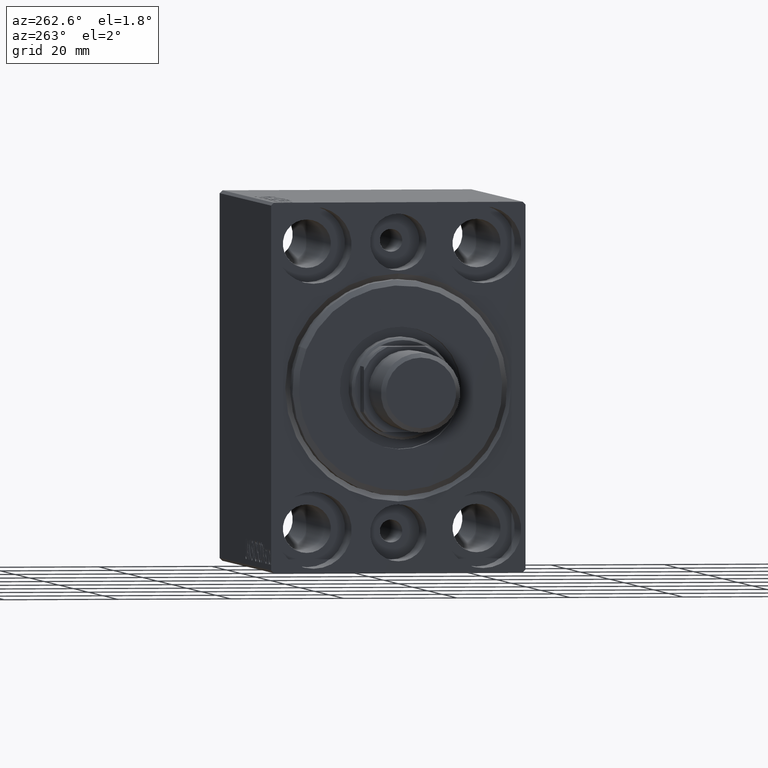
[diagram: clean part render]
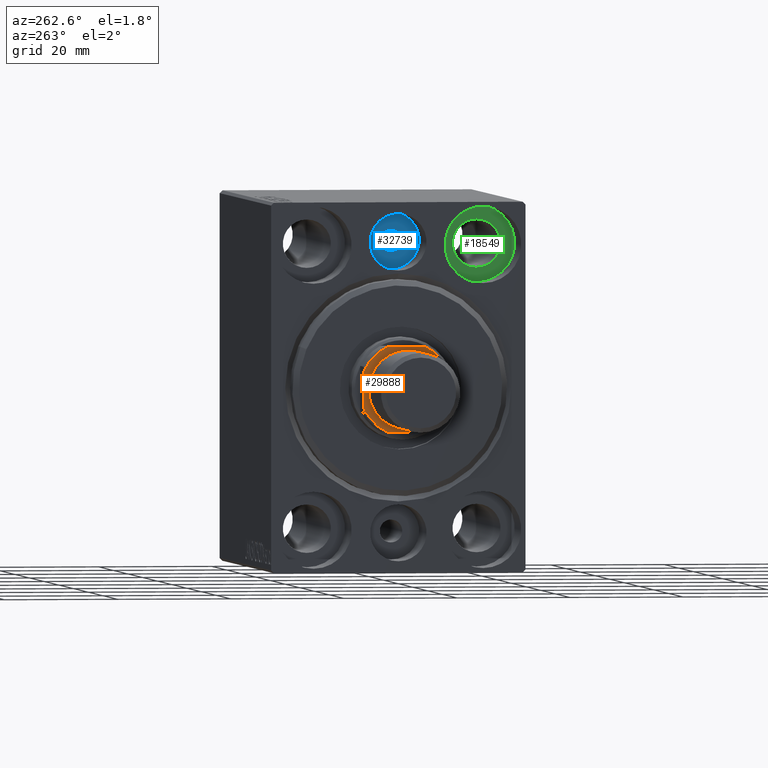
[diagram: same view with three faces highlighted in distinct colors, each labeled with its STEP entity id]
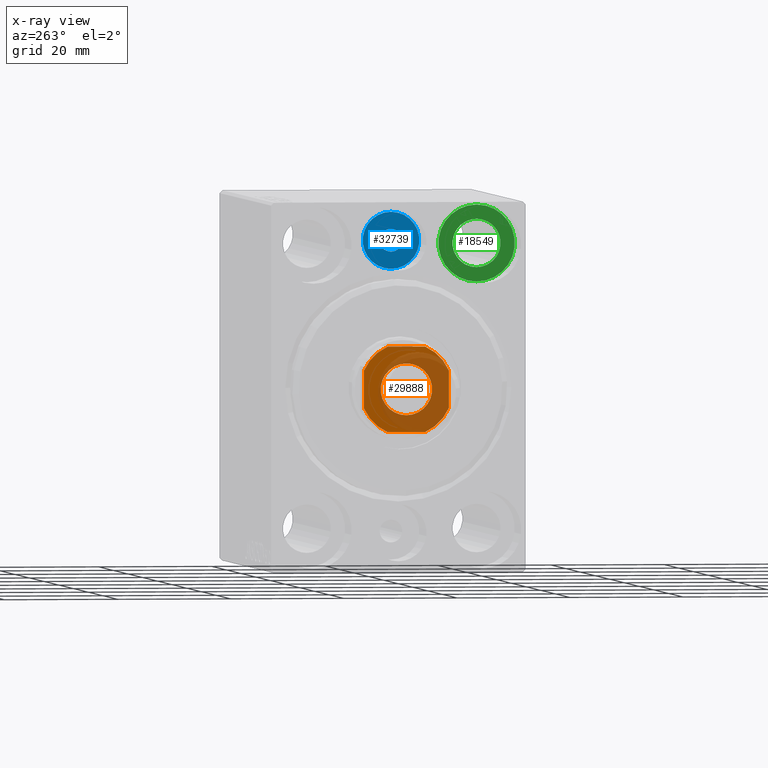
[diagram: x-ray of the same camera — body ghosted, the three highlighted faces saturated]
A machine part, auxiliary view with three faces highlighted in distinct colors.
The next image is the same camera in x-ray (body ghosted, the three faces saturated) — at least one of them is partly hidden behind the body in this view.
Their STEP definitions:

[orange] entity #29888 — the highlighted planar face has unit normal (-1, 0, 0).
#442 = CIRCLE ( 'NONE', #15416, 8.200000000000002842 ) ;
#1366 = CARTESIAN_POINT ( 'NONE',  ( 7.499999999999998224, 3.315116890850192899, 75.00000000000001421 ) ) ;
#1729 = DIRECTION ( 'NONE',  ( 1.000000000000000000, 0.000000000000000000, 0.000000000000000000 ) ) ;
#2503 = LINE ( 'NONE', #26401, #4319 ) ;
#2802 = CARTESIAN_POINT ( 'NONE',  ( 7.499999999999997335, 7.500000000000000888, 75.00000000000001421 ) ) ;
#3000 = EDGE_CURVE ( 'NONE', #27829, #9729, #6425, .T. ) ;
#3057 = FACE_OUTER_BOUND ( 'NONE', #17407, .T. ) ;
#3119 = EDGE_CURVE ( 'NONE', #22297, #27567, #2503, .T. ) ;
#4319 = VECTOR ( 'NONE', #30416, 1000.000000000000000 ) ;
#4987 = DIRECTION ( 'NONE',  ( 0.000000000000000000, -0.000000000000000000, -1.000000000000000000 ) ) ;
#5552 = ORIENTED_EDGE ( 'NONE', *, *, #10823, .T. ) ;
#5656 = DIRECTION ( 'NONE',  ( 1.000000000000000000, 0.000000000000000000, 0.000000000000000000 ) ) ;
#6035 = DIRECTION ( 'NONE',  ( -0.000000000000000000, 0.000000000000000000, 1.000000000000000000 ) ) ;
#6104 = DIRECTION ( 'NONE',  ( -0.000000000000000000, 0.000000000000000000, 1.000000000000000000 ) ) ;
#6425 = CIRCLE ( 'NONE', #17173, 4.549999999999991829 ) ;
#6665 = ORIENTED_EDGE ( 'NONE', *, *, #13968, .T. ) ;
#8273 = EDGE_CURVE ( 'NONE', #33694, #41959, #24808, .T. ) ;
#9729 = VERTEX_POINT ( 'NONE', #13303 ) ;
#9964 = DIRECTION ( 'NONE',  ( 1.000000000000000000, 0.000000000000000000, 0.000000000000000000 ) ) ;
#10823 = EDGE_CURVE ( 'NONE', #9729, #27829, #25779, .T. ) ;
#12752 = AXIS2_PLACEMENT_3D ( 'NONE', #39715, #29879, #26762 ) ;
#13303 = CARTESIAN_POINT ( 'NONE',  ( -4.549999999999991829, 5.572142936120446480E-16, 75.00000000000001421 ) ) ;
#13968 = EDGE_CURVE ( 'NONE', #28750, #33694, #31526, .T. ) ;
#14471 = EDGE_CURVE ( 'NONE', #41277, #19533, #19429, .T. ) ;
#14518 = EDGE_LOOP ( 'NONE', ( #32367, #5552 ) ) ;
#14656 = VERTEX_POINT ( 'NONE', #1366 ) ;
#15183 = EDGE_CURVE ( 'NONE', #41959, #41277, #19147, .T. ) ;
#15416 = AXIS2_PLACEMENT_3D ( 'NONE', #33574, #6104, #40971 ) ;
#15509 = AXIS2_PLACEMENT_3D ( 'NONE', #28770, #28554, #1729 ) ;
#15692 = DIRECTION ( 'NONE',  ( 1.000000000000000000, 0.000000000000000000, 0.000000000000000000 ) ) ;
#16696 = DIRECTION ( 'NONE',  ( -0.000000000000000000, 0.000000000000000000, 1.000000000000000000 ) ) ;
#16789 = DIRECTION ( 'NONE',  ( 1.000000000000000000, 0.000000000000000000, 0.000000000000000000 ) ) ;
#17171 = ORIENTED_EDGE ( 'NONE', *, *, #39672, .T. ) ;
#17173 = AXIS2_PLACEMENT_3D ( 'NONE', #25317, #4987, #15692 ) ;
#17285 = VECTOR ( 'NONE', #34886, 1000.000000000000000 ) ;
#17407 = EDGE_LOOP ( 'NONE', ( #38535, #17171, #26418, #42631, #6665, #35946, #23241, #31021 ) ) ;
#18994 = CARTESIAN_POINT ( 'NONE',  ( 4.549999999999991829, 0.000000000000000000, 75.00000000000001421 ) ) ;
#19147 = LINE ( 'NONE', #23602, #32974 ) ;
#19429 = CIRCLE ( 'NONE', #43693, 8.200000000000011724 ) ;
#19533 = VERTEX_POINT ( 'NONE', #20310 ) ;
#19775 = DIRECTION ( 'NONE',  ( -1.156482317317871478E-16, 1.000000000000000000, -0.000000000000000000 ) ) ;
#19800 = DIRECTION ( 'NONE',  ( 1.000000000000000000, 0.000000000000000000, 0.000000000000000000 ) ) ;
#20126 = CARTESIAN_POINT ( 'NONE',  ( 0.000000000000000000, 0.000000000000000000, 75.00000000000001421 ) ) ;
#20310 = CARTESIAN_POINT ( 'NONE',  ( 7.499999999999998224, -3.315116890850184461, 75.00000000000001421 ) ) ;
#22297 = VERTEX_POINT ( 'NONE', #38203 ) ;
#23165 = VECTOR ( 'NONE', #19775, 1000.000000000000000 ) ;
#23241 = ORIENTED_EDGE ( 'NONE', *, *, #15183, .T. ) ;
#23602 = CARTESIAN_POINT ( 'NONE',  ( -7.499999999999999112, -7.499999999999998224, 75.00000000000001421 ) ) ;
#24049 = CARTESIAN_POINT ( 'NONE',  ( 0.000000000000000000, 0.000000000000000000, 75.00000000000001421 ) ) ;
#24808 = CIRCLE ( 'NONE', #15509, 8.200000000000024158 ) ;
#25014 = EDGE_CURVE ( 'NONE', #19533, #14656, #30929, .T. ) ;
#25317 = CARTESIAN_POINT ( 'NONE',  ( 0.000000000000000000, 0.000000000000000000, 75.00000000000001421 ) ) ;
#25779 = CIRCLE ( 'NONE', #28640, 4.549999999999991829 ) ;
#26401 = CARTESIAN_POINT ( 'NONE',  ( -7.500000000000001776, 7.500000000000001776, 75.00000000000001421 ) ) ;
#26418 = ORIENTED_EDGE ( 'NONE', *, *, #3119, .T. ) ;
#26762 = DIRECTION ( 'NONE',  ( 1.000000000000000000, 0.000000000000000000, 0.000000000000000000 ) ) ;
#26964 = PLANE ( 'NONE',  #38285 ) ;
#27567 = VERTEX_POINT ( 'NONE', #38580 ) ;
#27829 = VERTEX_POINT ( 'NONE', #18994 ) ;
#28554 = DIRECTION ( 'NONE',  ( -0.000000000000000000, 0.000000000000000000, 1.000000000000000000 ) ) ;
#28640 = AXIS2_PLACEMENT_3D ( 'NONE', #36030, #42547, #5656 ) ;
#28750 = VERTEX_POINT ( 'NONE', #37488 ) ;
#28770 = CARTESIAN_POINT ( 'NONE',  ( 0.000000000000000000, 0.000000000000000000, 75.00000000000001421 ) ) ;
#29160 = EDGE_CURVE ( 'NONE', #27567, #28750, #442, .T. ) ;
#29784 = CARTESIAN_POINT ( 'NONE',  ( -7.499999999999999112, -3.315116890850218212, 75.00000000000001421 ) ) ;
#29879 = DIRECTION ( 'NONE',  ( -0.000000000000000000, 0.000000000000000000, 1.000000000000000000 ) ) ;
#29888 = ADVANCED_FACE ( 'NONE', ( #41034, #3057 ), #26964, .T. ) ;
#30416 = DIRECTION ( 'NONE',  ( -1.000000000000000000, 5.782411586589357392E-17, -0.000000000000000000 ) ) ;
#30929 = LINE ( 'NONE', #2802, #23165 ) ;
#31021 = ORIENTED_EDGE ( 'NONE', *, *, #14471, .T. ) ;
#31526 = LINE ( 'NONE', #37999, #17285 ) ;
#32367 = ORIENTED_EDGE ( 'NONE', *, *, #3000, .T. ) ;
#32974 = VECTOR ( 'NONE', #19800, 1000.000000000000000 ) ;
#33574 = CARTESIAN_POINT ( 'NONE',  ( 0.000000000000000000, 0.000000000000000000, 75.00000000000001421 ) ) ;
#33694 = VERTEX_POINT ( 'NONE', #29784 ) ;
#34886 = DIRECTION ( 'NONE',  ( 1.734723475976807094E-16, -1.000000000000000000, 0.000000000000000000 ) ) ;
#35946 = ORIENTED_EDGE ( 'NONE', *, *, #8273, .T. ) ;
#36030 = CARTESIAN_POINT ( 'NONE',  ( 0.000000000000000000, 0.000000000000000000, 75.00000000000001421 ) ) ;
#37488 = CARTESIAN_POINT ( 'NONE',  ( -7.500000000000000888, 3.315116890850160036, 75.00000000000001421 ) ) ;
#37999 = CARTESIAN_POINT ( 'NONE',  ( -7.500000000000001776, 7.500000000000001776, 75.00000000000001421 ) ) ;
#38203 = CARTESIAN_POINT ( 'NONE',  ( 3.315116890850187126, 7.500000000000000888, 75.00000000000001421 ) ) ;
#38285 = AXIS2_PLACEMENT_3D ( 'NONE', #24049, #16696, #9964 ) ;
#38535 = ORIENTED_EDGE ( 'NONE', *, *, #25014, .T. ) ;
#38580 = CARTESIAN_POINT ( 'NONE',  ( -3.315116890850159148, 7.500000000000000888, 75.00000000000001421 ) ) ;
#39672 = EDGE_CURVE ( 'NONE', #14656, #22297, #44133, .T. ) ;
#39715 = CARTESIAN_POINT ( 'NONE',  ( 0.000000000000000000, 0.000000000000000000, 75.00000000000001421 ) ) ;
#40971 = DIRECTION ( 'NONE',  ( 1.000000000000000000, 0.000000000000000000, 0.000000000000000000 ) ) ;
#41034 = FACE_BOUND ( 'NONE', #14518, .T. ) ;
#41277 = VERTEX_POINT ( 'NONE', #42053 ) ;
#41626 = CARTESIAN_POINT ( 'NONE',  ( -3.315116890850222653, -7.499999999999998224, 75.00000000000001421 ) ) ;
#41959 = VERTEX_POINT ( 'NONE', #41626 ) ;
#42053 = CARTESIAN_POINT ( 'NONE',  ( 3.315116890850187570, -7.499999999999996447, 75.00000000000001421 ) ) ;
#42547 = DIRECTION ( 'NONE',  ( 0.000000000000000000, -0.000000000000000000, -1.000000000000000000 ) ) ;
#42631 = ORIENTED_EDGE ( 'NONE', *, *, #29160, .T. ) ;
#43693 = AXIS2_PLACEMENT_3D ( 'NONE', #20126, #6035, #16789 ) ;
#44133 = CIRCLE ( 'NONE', #12752, 8.200000000000013500 ) ;

[blue] entity #32739 — the highlighted planar face has unit normal (-1, 0, 0).
#171 = ORIENTED_EDGE ( 'NONE', *, *, #28528, .F. ) ;
#3052 = FACE_BOUND ( 'NONE', #30527, .T. ) ;
#3549 = VERTEX_POINT ( 'NONE', #12510 ) ;
#3824 = CARTESIAN_POINT ( 'NONE',  ( 10.00000000000000000, 0.000000000000000000, 25.50000000000000000 ) ) ;
#3891 = ORIENTED_EDGE ( 'NONE', *, *, #41878, .T. ) ;
#5822 = DIRECTION ( 'NONE',  ( -1.000000000000000000, 0.000000000000000000, 0.000000000000000000 ) ) ;
#9229 = DIRECTION ( 'NONE',  ( -1.000000000000000000, 0.000000000000000000, 0.000000000000000000 ) ) ;
#9988 = CIRCLE ( 'NONE', #34981, 5.000000000000000888 ) ;
#12510 = CARTESIAN_POINT ( 'NONE',  ( 10.00000000000000000, 0.000000000000000000, 30.50000000000000000 ) ) ;
#13114 = DIRECTION ( 'NONE',  ( 0.000000000000000000, 0.000000000000000000, 1.000000000000000000 ) ) ;
#13222 = CARTESIAN_POINT ( 'NONE',  ( 10.00000000000000000, 0.000000000000000000, 25.50000000000000000 ) ) ;
#16692 = FACE_OUTER_BOUND ( 'NONE', #27668, .T. ) ;
#18950 = CIRCLE ( 'NONE', #36057, 1.999999999999998224 ) ;
#19193 = CARTESIAN_POINT ( 'NONE',  ( 10.00000000000000000, 0.000000000000000000, 25.50000000000000000 ) ) ;
#19508 = CARTESIAN_POINT ( 'NONE',  ( 10.00000000000000000, 0.000000000000000000, 25.50000000000000000 ) ) ;
#20952 = VERTEX_POINT ( 'NONE', #22186 ) ;
#21265 = VERTEX_POINT ( 'NONE', #29068 ) ;
#22186 = CARTESIAN_POINT ( 'NONE',  ( 10.00000000000000000, 6.123233995736765296E-16, 20.49999999999999645 ) ) ;
#22316 = VERTEX_POINT ( 'NONE', #35071 ) ;
#22815 = DIRECTION ( 'NONE',  ( 0.000000000000000000, 0.000000000000000000, 1.000000000000000000 ) ) ;
#25373 = AXIS2_PLACEMENT_3D ( 'NONE', #3824, #41138, #37982 ) ;
#26182 = AXIS2_PLACEMENT_3D ( 'NONE', #13222, #26849, #33750 ) ;
#26849 = DIRECTION ( 'NONE',  ( -1.000000000000000000, 0.000000000000000000, 0.000000000000000000 ) ) ;
#27668 = EDGE_LOOP ( 'NONE', ( #41092, #3891 ) ) ;
#27670 = AXIS2_PLACEMENT_3D ( 'NONE', #19193, #32588, #13114 ) ;
#28436 = EDGE_CURVE ( 'NONE', #21265, #22316, #18950, .T. ) ;
#28528 = EDGE_CURVE ( 'NONE', #22316, #21265, #41071, .T. ) ;
#29068 = CARTESIAN_POINT ( 'NONE',  ( 10.00000000000000000, 2.449293598294706414E-16, 23.50000000000000000 ) ) ;
#29128 = CIRCLE ( 'NONE', #26182, 5.000000000000000888 ) ;
#29520 = CARTESIAN_POINT ( 'NONE',  ( 10.00000000000000000, 0.000000000000000000, 25.50000000000000000 ) ) ;
#30306 = PLANE ( 'NONE',  #27670 ) ;
#30527 = EDGE_LOOP ( 'NONE', ( #171, #34009 ) ) ;
#32588 = DIRECTION ( 'NONE',  ( -1.000000000000000000, 0.000000000000000000, 0.000000000000000000 ) ) ;
#32739 = ADVANCED_FACE ( 'NONE', ( #3052, #16692 ), #30306, .T. ) ;
#33750 = DIRECTION ( 'NONE',  ( 0.000000000000000000, 0.000000000000000000, 1.000000000000000000 ) ) ;
#34009 = ORIENTED_EDGE ( 'NONE', *, *, #28436, .F. ) ;
#34981 = AXIS2_PLACEMENT_3D ( 'NONE', #19508, #9229, #40279 ) ;
#35071 = CARTESIAN_POINT ( 'NONE',  ( 10.00000000000000000, 0.000000000000000000, 27.49999999999999645 ) ) ;
#35855 = EDGE_CURVE ( 'NONE', #3549, #20952, #29128, .T. ) ;
#36057 = AXIS2_PLACEMENT_3D ( 'NONE', #29520, #5822, #22815 ) ;
#37982 = DIRECTION ( 'NONE',  ( 0.000000000000000000, 0.000000000000000000, 1.000000000000000000 ) ) ;
#40279 = DIRECTION ( 'NONE',  ( 0.000000000000000000, 0.000000000000000000, 1.000000000000000000 ) ) ;
#41071 = CIRCLE ( 'NONE', #25373, 1.999999999999998224 ) ;
#41092 = ORIENTED_EDGE ( 'NONE', *, *, #35855, .T. ) ;
#41138 = DIRECTION ( 'NONE',  ( -1.000000000000000000, 0.000000000000000000, 0.000000000000000000 ) ) ;
#41878 = EDGE_CURVE ( 'NONE', #20952, #3549, #9988, .T. ) ;

[green] entity #18549 — the highlighted planar face has unit normal (-1, 0, 0).
#961 = CARTESIAN_POINT ( 'NONE',  ( 9.000000000000000000, -14.99999999999999645, 31.75000000000000000 ) ) ;
#1555 = CARTESIAN_POINT ( 'NONE',  ( 9.000000000000000000, -14.99999999999999645, 18.25000000000000355 ) ) ;
#1882 = VERTEX_POINT ( 'NONE', #25149 ) ;
#2006 = FACE_OUTER_BOUND ( 'NONE', #23298, .T. ) ;
#5693 = CARTESIAN_POINT ( 'NONE',  ( 9.000000000000000000, -14.99999999999999645, 25.00000000000000000 ) ) ;
#5780 = PLANE ( 'NONE',  #40213 ) ;
#6537 = AXIS2_PLACEMENT_3D ( 'NONE', #9785, #9335, #23427 ) ;
#7105 = VERTEX_POINT ( 'NONE', #961 ) ;
#8919 = DIRECTION ( 'NONE',  ( -1.000000000000000000, 0.000000000000000000, 0.000000000000000000 ) ) ;
#9335 = DIRECTION ( 'NONE',  ( -1.000000000000000000, 0.000000000000000000, 0.000000000000000000 ) ) ;
#9785 = CARTESIAN_POINT ( 'NONE',  ( 9.000000000000001776, -14.99999999999999645, 25.00000000000000000 ) ) ;
#11706 = AXIS2_PLACEMENT_3D ( 'NONE', #20250, #13330, #20475 ) ;
#12252 = EDGE_CURVE ( 'NONE', #1882, #22106, #25818, .T. ) ;
#12994 = CARTESIAN_POINT ( 'NONE',  ( 9.000000000000001776, -14.99999999999999645, 25.00000000000000000 ) ) ;
#13330 = DIRECTION ( 'NONE',  ( -1.000000000000000000, 0.000000000000000000, 0.000000000000000000 ) ) ;
#16207 = AXIS2_PLACEMENT_3D ( 'NONE', #12994, #26615, #19685 ) ;
#18549 = ADVANCED_FACE ( 'NONE', ( #35943, #2006 ), #5780, .T. ) ;
#18948 = EDGE_CURVE ( 'NONE', #7105, #39562, #23840, .T. ) ;
#19685 = DIRECTION ( 'NONE',  ( 0.000000000000000000, 0.000000000000000000, 1.000000000000000000 ) ) ;
#19832 = AXIS2_PLACEMENT_3D ( 'NONE', #5693, #26468, #23124 ) ;
#20250 = CARTESIAN_POINT ( 'NONE',  ( 9.000000000000000000, -14.99999999999999645, 25.00000000000000000 ) ) ;
#20475 = DIRECTION ( 'NONE',  ( 0.000000000000000000, 0.000000000000000000, 1.000000000000000000 ) ) ;
#22106 = VERTEX_POINT ( 'NONE', #28215 ) ;
#22439 = ORIENTED_EDGE ( 'NONE', *, *, #18948, .T. ) ;
#22554 = DIRECTION ( 'NONE',  ( 0.000000000000000000, 0.000000000000000000, 1.000000000000000000 ) ) ;
#23124 = DIRECTION ( 'NONE',  ( 0.000000000000000000, 0.000000000000000000, 1.000000000000000000 ) ) ;
#23208 = ORIENTED_EDGE ( 'NONE', *, *, #36622, .F. ) ;
#23298 = EDGE_LOOP ( 'NONE', ( #22439, #32927 ) ) ;
#23427 = DIRECTION ( 'NONE',  ( 0.000000000000000000, 0.000000000000000000, 1.000000000000000000 ) ) ;
#23840 = CIRCLE ( 'NONE', #11706, 6.749999999999999112 ) ;
#25149 = CARTESIAN_POINT ( 'NONE',  ( 9.000000000000001776, -14.99999999999999645, 29.25000000000000000 ) ) ;
#25818 = CIRCLE ( 'NONE', #6537, 4.249999999999996447 ) ;
#25906 = CARTESIAN_POINT ( 'NONE',  ( 9.000000000000000000, 0.000000000000000000, 0.000000000000000000 ) ) ;
#26468 = DIRECTION ( 'NONE',  ( -1.000000000000000000, 0.000000000000000000, 0.000000000000000000 ) ) ;
#26615 = DIRECTION ( 'NONE',  ( -1.000000000000000000, 0.000000000000000000, 0.000000000000000000 ) ) ;
#26926 = CIRCLE ( 'NONE', #16207, 4.249999999999996447 ) ;
#28215 = CARTESIAN_POINT ( 'NONE',  ( 9.000000000000001776, -14.99999999999999645, 20.75000000000000355 ) ) ;
#32927 = ORIENTED_EDGE ( 'NONE', *, *, #39387, .T. ) ;
#33371 = CIRCLE ( 'NONE', #19832, 6.749999999999999112 ) ;
#35353 = EDGE_LOOP ( 'NONE', ( #36354, #23208 ) ) ;
#35943 = FACE_BOUND ( 'NONE', #35353, .T. ) ;
#36354 = ORIENTED_EDGE ( 'NONE', *, *, #12252, .F. ) ;
#36622 = EDGE_CURVE ( 'NONE', #22106, #1882, #26926, .T. ) ;
#39387 = EDGE_CURVE ( 'NONE', #39562, #7105, #33371, .T. ) ;
#39562 = VERTEX_POINT ( 'NONE', #1555 ) ;
#40213 = AXIS2_PLACEMENT_3D ( 'NONE', #25906, #8919, #22554 ) ;